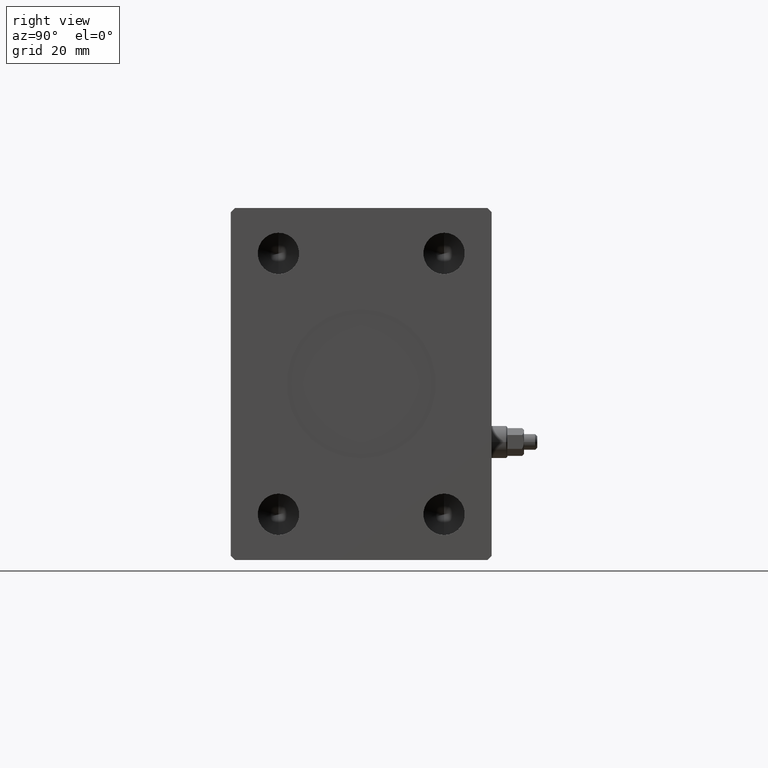
[diagram: clean part render]
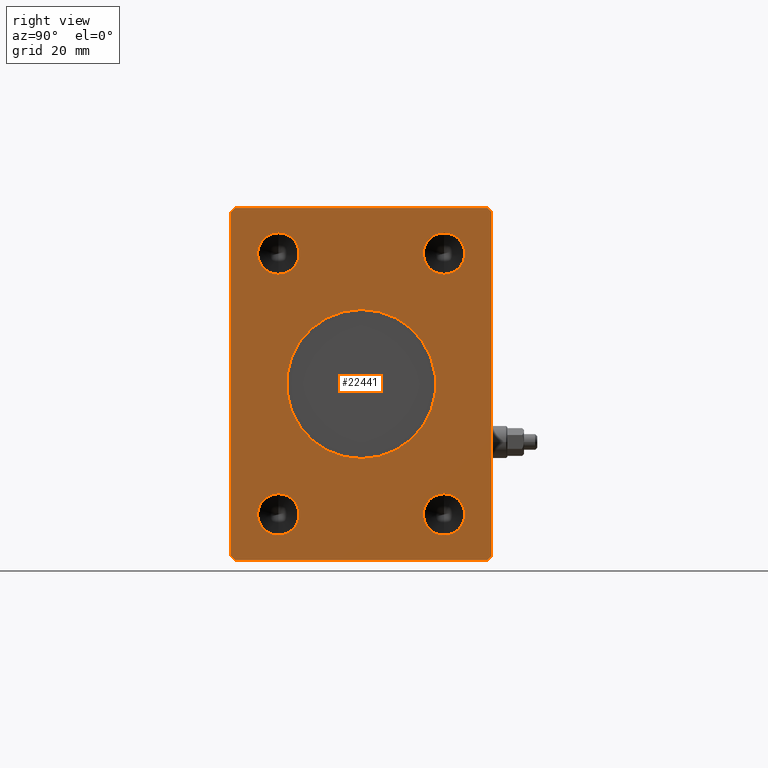
[diagram: same view with one face highlighted and labeled with its STEP entity id]
A machine part, right view. The second image highlights one B-rep face of the part: STEP entity #22441.
In plain terms, the highlighted planar face has unit normal (1, 0, 0).
Its self-contained STEP definition (entity closure, byte-faithful):
#242 = DIRECTION ( 'NONE',  ( 0.000000000000000000, -0.7071067811865462405, -0.7071067811865489050 ) ) ;
#675 = EDGE_CURVE ( 'NONE', #9690, #21901, #19733, .T. ) ;
#768 = VERTEX_POINT ( 'NONE', #7923 ) ;
#861 = CIRCLE ( 'NONE', #14682, 4.999999999999997335 ) ;
#1560 = VECTOR ( 'NONE', #26360, 999.9999999999998863 ) ;
#1970 = AXIS2_PLACEMENT_3D ( 'NONE', #29780, #9288, #36842 ) ;
#1990 = CARTESIAN_POINT ( 'NONE',  ( 126.0000000000000000, -31.50000000000000000, -41.50000000000000711 ) ) ;
#2639 = ORIENTED_EDGE ( 'NONE', *, *, #14465, .F. ) ;
#2842 = ORIENTED_EDGE ( 'NONE', *, *, #14797, .F. ) ;
#2952 = EDGE_CURVE ( 'NONE', #14573, #7235, #31456, .T. ) ;
#3640 = CARTESIAN_POINT ( 'NONE',  ( 126.0000000000000000, 19.99999999999999645, -26.50000000000000355 ) ) ;
#4316 = EDGE_LOOP ( 'NONE', ( #6219, #2842 ) ) ;
#5070 = CIRCLE ( 'NONE', #31995, 4.999999999999997335 ) ;
#5476 = EDGE_CURVE ( 'NONE', #39794, #14114, #9320, .T. ) ;
#6219 = ORIENTED_EDGE ( 'NONE', *, *, #33668, .F. ) ;
#6270 = VERTEX_POINT ( 'NONE', #26092 ) ;
#7199 = VERTEX_POINT ( 'NONE', #19425 ) ;
#7235 = VERTEX_POINT ( 'NONE', #11934 ) ;
#7778 = CIRCLE ( 'NONE', #1970, 4.999999999999997335 ) ;
#7923 = CARTESIAN_POINT ( 'NONE',  ( 126.0000000000000000, 31.50000000000001421, 41.49999999999999289 ) ) ;
#8057 = ORIENTED_EDGE ( 'NONE', *, *, #44827, .F. ) ;
#8146 = CARTESIAN_POINT ( 'NONE',  ( 126.0000000000000000, 30.50000000000001776, -42.50000000000000711 ) ) ;
#8466 = EDGE_CURVE ( 'NONE', #6270, #16624, #11125, .T. ) ;
#8871 = VERTEX_POINT ( 'NONE', #1990 ) ;
#9127 = DIRECTION ( 'NONE',  ( 0.000000000000000000, -0.7071067811865474617, 0.7071067811865474617 ) ) ;
#9140 = FACE_BOUND ( 'NONE', #27356, .T. ) ;
#9288 = DIRECTION ( 'NONE',  ( 1.000000000000000000, -0.000000000000000000, -0.000000000000000000 ) ) ;
#9320 = LINE ( 'NONE', #34125, #19900 ) ;
#9690 = VERTEX_POINT ( 'NONE', #32980 ) ;
#10273 = VECTOR ( 'NONE', #38579, 1000.000000000000114 ) ;
#10610 = EDGE_CURVE ( 'NONE', #768, #43528, #23682, .T. ) ;
#10696 = ORIENTED_EDGE ( 'NONE', *, *, #5476, .T. ) ;
#10732 = CARTESIAN_POINT ( 'NONE',  ( 126.0000000000000000, -30.50000000000000355, 42.49999999999999289 ) ) ;
#11010 = CIRCLE ( 'NONE', #17555, 4.999999999999997335 ) ;
#11125 = CIRCLE ( 'NONE', #44582, 4.999999999999997335 ) ;
#11934 = CARTESIAN_POINT ( 'NONE',  ( 126.0000000000000000, -31.50000000000000000, 41.49999999999999289 ) ) ;
#12527 = DIRECTION ( 'NONE',  ( 1.000000000000000000, -0.000000000000000000, -0.000000000000000000 ) ) ;
#12549 = PLANE ( 'NONE',  #22886 ) ;
#12947 = CARTESIAN_POINT ( 'NONE',  ( 126.0000000000000000, 19.99999999999999645, -31.50000000000000000 ) ) ;
#13185 = CARTESIAN_POINT ( 'NONE',  ( 126.0000000000000000, 30.50000000000001421, 42.49999999999999289 ) ) ;
#13421 = DIRECTION ( 'NONE',  ( 0.000000000000000000, 1.000000000000000000, 0.000000000000000000 ) ) ;
#13896 = CARTESIAN_POINT ( 'NONE',  ( 126.0000000000000000, 30.50000000000001421, 42.49999999999999289 ) ) ;
#14114 = VERTEX_POINT ( 'NONE', #40569 ) ;
#14274 = CARTESIAN_POINT ( 'NONE',  ( 126.0000000000000000, 19.99999999999999645, -36.50000000000000000 ) ) ;
#14465 = EDGE_CURVE ( 'NONE', #7199, #31808, #7778, .T. ) ;
#14500 = ORIENTED_EDGE ( 'NONE', *, *, #675, .F. ) ;
#14573 = VERTEX_POINT ( 'NONE', #31121 ) ;
#14682 = AXIS2_PLACEMENT_3D ( 'NONE', #34252, #37894, #44741 ) ;
#14797 = EDGE_CURVE ( 'NONE', #17376, #32457, #44138, .T. ) ;
#15323 = CARTESIAN_POINT ( 'NONE',  ( 126.0000000000000000, 19.99999999999999645, 31.50000000000000000 ) ) ;
#16624 = VERTEX_POINT ( 'NONE', #34722 ) ;
#16636 = DIRECTION ( 'NONE',  ( 0.000000000000000000, -1.000000000000000000, 0.000000000000000000 ) ) ;
#17029 = DIRECTION ( 'NONE',  ( 1.000000000000000000, -0.000000000000000000, -0.000000000000000000 ) ) ;
#17376 = VERTEX_POINT ( 'NONE', #43919 ) ;
#17449 = CARTESIAN_POINT ( 'NONE',  ( 126.0000000000000000, -20.00000000000000355, 36.50000000000000000 ) ) ;
#17506 = AXIS2_PLACEMENT_3D ( 'NONE', #20522, #30547, #23496 ) ;
#17555 = AXIS2_PLACEMENT_3D ( 'NONE', #29831, #12527, #26424 ) ;
#17782 = ORIENTED_EDGE ( 'NONE', *, *, #24280, .T. ) ;
#17851 = ORIENTED_EDGE ( 'NONE', *, *, #30929, .F. ) ;
#17958 = EDGE_LOOP ( 'NONE', ( #20118, #2639 ) ) ;
#18364 = VERTEX_POINT ( 'NONE', #20060 ) ;
#18434 = CIRCLE ( 'NONE', #35165, 4.999999999999997335 ) ;
#18873 = DIRECTION ( 'NONE',  ( 0.000000000000000000, 0.000000000000000000, -1.000000000000000000 ) ) ;
#19425 = CARTESIAN_POINT ( 'NONE',  ( 126.0000000000000000, -20.00000000000000355, -26.50000000000000355 ) ) ;
#19572 = DIRECTION ( 'NONE',  ( 1.000000000000000000, -0.000000000000000000, -0.000000000000000000 ) ) ;
#19733 = CIRCLE ( 'NONE', #25554, 4.999999999999997335 ) ;
#19805 = DIRECTION ( 'NONE',  ( 0.000000000000000000, 0.000000000000000000, -1.000000000000000000 ) ) ;
#19851 = VECTOR ( 'NONE', #28521, 1000.000000000000000 ) ;
#19900 = VECTOR ( 'NONE', #13421, 1000.000000000000000 ) ;
#19929 = VECTOR ( 'NONE', #9127, 1000.000000000000114 ) ;
#20035 = DIRECTION ( 'NONE',  ( 1.000000000000000000, -0.000000000000000000, -0.000000000000000000 ) ) ;
#20060 = CARTESIAN_POINT ( 'NONE',  ( 126.0000000000000000, 31.50000000000001421, -41.50000000000000711 ) ) ;
#20118 = ORIENTED_EDGE ( 'NONE', *, *, #38167, .F. ) ;
#20122 = ORIENTED_EDGE ( 'NONE', *, *, #8466, .F. ) ;
#20522 = CARTESIAN_POINT ( 'NONE',  ( 126.0000000000000000, 0.000000000000000000, 0.000000000000000000 ) ) ;
#21831 = VERTEX_POINT ( 'NONE', #14274 ) ;
#21901 = VERTEX_POINT ( 'NONE', #17449 ) ;
#22349 = DIRECTION ( 'NONE',  ( 1.000000000000000000, 0.000000000000000000, 0.000000000000000000 ) ) ;
#22441 = ADVANCED_FACE ( 'NONE', ( #32826, #9140, #43749, #29635, #40112, #23019 ), #12549, .T. ) ;
#22587 = ORIENTED_EDGE ( 'NONE', *, *, #24730, .T. ) ;
#22886 = AXIS2_PLACEMENT_3D ( 'NONE', #33057, #22349, #32610 ) ;
#23019 = FACE_OUTER_BOUND ( 'NONE', #33504, .T. ) ;
#23496 = DIRECTION ( 'NONE',  ( 0.000000000000000000, 0.000000000000000000, -1.000000000000000000 ) ) ;
#23607 = CARTESIAN_POINT ( 'NONE',  ( 126.0000000000000000, -30.50000000000000711, -42.50000000000000711 ) ) ;
#23682 = LINE ( 'NONE', #40331, #19929 ) ;
#24106 = CARTESIAN_POINT ( 'NONE',  ( 126.0000000000000000, -20.00000000000000355, 31.50000000000000000 ) ) ;
#24280 = EDGE_CURVE ( 'NONE', #43528, #14573, #33958, .T. ) ;
#24537 = ORIENTED_EDGE ( 'NONE', *, *, #28821, .T. ) ;
#24730 = EDGE_CURVE ( 'NONE', #7235, #8871, #43445, .T. ) ;
#25554 = AXIS2_PLACEMENT_3D ( 'NONE', #24106, #19572, #33463 ) ;
#25687 = LINE ( 'NONE', #8146, #1560 ) ;
#25753 = VECTOR ( 'NONE', #16636, 1000.000000000000000 ) ;
#25808 = EDGE_CURVE ( 'NONE', #21901, #9690, #11010, .T. ) ;
#26092 = CARTESIAN_POINT ( 'NONE',  ( 126.0000000000000000, 19.99999999999999645, 26.50000000000000355 ) ) ;
#26360 = DIRECTION ( 'NONE',  ( 0.000000000000000000, 0.7071067811865462405, 0.7071067811865489050 ) ) ;
#26424 = DIRECTION ( 'NONE',  ( 0.000000000000000000, 0.000000000000000000, -1.000000000000000000 ) ) ;
#26843 = ORIENTED_EDGE ( 'NONE', *, *, #41801, .F. ) ;
#27090 = CIRCLE ( 'NONE', #32159, 4.999999999999997335 ) ;
#27356 = EDGE_LOOP ( 'NONE', ( #20122, #8057 ) ) ;
#27599 = DIRECTION ( 'NONE',  ( 1.000000000000000000, 0.000000000000000000, 0.000000000000000000 ) ) ;
#28521 = DIRECTION ( 'NONE',  ( 0.000000000000000000, 0.000000000000000000, 1.000000000000000000 ) ) ;
#28821 = EDGE_CURVE ( 'NONE', #18364, #768, #44486, .T. ) ;
#29219 = DIRECTION ( 'NONE',  ( 1.000000000000000000, -0.000000000000000000, -0.000000000000000000 ) ) ;
#29551 = CARTESIAN_POINT ( 'NONE',  ( 126.0000000000000000, -31.50000000000000000, 41.49999999999999289 ) ) ;
#29635 = FACE_BOUND ( 'NONE', #43319, .T. ) ;
#29780 = CARTESIAN_POINT ( 'NONE',  ( 126.0000000000000000, -20.00000000000000355, -31.50000000000000000 ) ) ;
#29831 = CARTESIAN_POINT ( 'NONE',  ( 126.0000000000000000, -20.00000000000000355, 31.50000000000000000 ) ) ;
#30197 = VECTOR ( 'NONE', #32520, 1000.000000000000000 ) ;
#30547 = DIRECTION ( 'NONE',  ( 1.000000000000000000, 0.000000000000000000, 0.000000000000000000 ) ) ;
#30557 = DIRECTION ( 'NONE',  ( 0.000000000000000000, 0.000000000000000000, -1.000000000000000000 ) ) ;
#30929 = EDGE_CURVE ( 'NONE', #39285, #21831, #5070, .T. ) ;
#31121 = CARTESIAN_POINT ( 'NONE',  ( 126.0000000000000000, -30.50000000000000355, 42.49999999999999289 ) ) ;
#31330 = CIRCLE ( 'NONE', #17506, 18.00000000000000000 ) ;
#31365 = EDGE_LOOP ( 'NONE', ( #14500, #37478 ) ) ;
#31456 = LINE ( 'NONE', #10732, #31469 ) ;
#31469 = VECTOR ( 'NONE', #242, 999.9999999999998863 ) ;
#31490 = CARTESIAN_POINT ( 'NONE',  ( 126.0000000000000000, 31.50000000000001421, -41.50000000000000711 ) ) ;
#31808 = VERTEX_POINT ( 'NONE', #40027 ) ;
#31995 = AXIS2_PLACEMENT_3D ( 'NONE', #12947, #17029, #34567 ) ;
#32159 = AXIS2_PLACEMENT_3D ( 'NONE', #39839, #36409, #18873 ) ;
#32457 = VERTEX_POINT ( 'NONE', #38342 ) ;
#32520 = DIRECTION ( 'NONE',  ( 0.000000000000000000, 0.000000000000000000, -1.000000000000000000 ) ) ;
#32610 = DIRECTION ( 'NONE',  ( 0.000000000000000000, 0.000000000000000000, -1.000000000000000000 ) ) ;
#32826 = FACE_BOUND ( 'NONE', #4316, .T. ) ;
#32980 = CARTESIAN_POINT ( 'NONE',  ( 126.0000000000000000, -20.00000000000000355, 26.50000000000000355 ) ) ;
#33057 = CARTESIAN_POINT ( 'NONE',  ( 126.0000000000000000, 0.000000000000000000, 0.000000000000000000 ) ) ;
#33463 = DIRECTION ( 'NONE',  ( 0.000000000000000000, 0.000000000000000000, -1.000000000000000000 ) ) ;
#33504 = EDGE_LOOP ( 'NONE', ( #34496, #17782, #41528, #22587, #35051, #10696, #38338, #24537 ) ) ;
#33668 = EDGE_CURVE ( 'NONE', #32457, #17376, #31330, .T. ) ;
#33958 = LINE ( 'NONE', #13896, #25753 ) ;
#33960 = AXIS2_PLACEMENT_3D ( 'NONE', #44909, #27599, #30557 ) ;
#34125 = CARTESIAN_POINT ( 'NONE',  ( 126.0000000000000000, -30.50000000000000711, -42.50000000000000711 ) ) ;
#34252 = CARTESIAN_POINT ( 'NONE',  ( 126.0000000000000000, 19.99999999999999645, -31.50000000000000000 ) ) ;
#34496 = ORIENTED_EDGE ( 'NONE', *, *, #10610, .T. ) ;
#34567 = DIRECTION ( 'NONE',  ( 0.000000000000000000, 0.000000000000000000, -1.000000000000000000 ) ) ;
#34712 = CARTESIAN_POINT ( 'NONE',  ( 126.0000000000000000, -31.50000000000000000, -41.50000000000000711 ) ) ;
#34722 = CARTESIAN_POINT ( 'NONE',  ( 126.0000000000000000, 19.99999999999999645, 36.50000000000000000 ) ) ;
#35051 = ORIENTED_EDGE ( 'NONE', *, *, #38631, .T. ) ;
#35165 = AXIS2_PLACEMENT_3D ( 'NONE', #15323, #29219, #43124 ) ;
#36409 = DIRECTION ( 'NONE',  ( 1.000000000000000000, -0.000000000000000000, -0.000000000000000000 ) ) ;
#36842 = DIRECTION ( 'NONE',  ( 0.000000000000000000, 0.000000000000000000, -1.000000000000000000 ) ) ;
#37478 = ORIENTED_EDGE ( 'NONE', *, *, #25808, .F. ) ;
#37894 = DIRECTION ( 'NONE',  ( 1.000000000000000000, -0.000000000000000000, -0.000000000000000000 ) ) ;
#37914 = LINE ( 'NONE', #34712, #10273 ) ;
#38167 = EDGE_CURVE ( 'NONE', #31808, #7199, #27090, .T. ) ;
#38338 = ORIENTED_EDGE ( 'NONE', *, *, #40376, .T. ) ;
#38342 = CARTESIAN_POINT ( 'NONE',  ( 126.0000000000000000, 0.000000000000000000, -18.00000000000000000 ) ) ;
#38579 = DIRECTION ( 'NONE',  ( 0.000000000000000000, 0.7071067811865451302, -0.7071067811865500152 ) ) ;
#38631 = EDGE_CURVE ( 'NONE', #8871, #39794, #37914, .T. ) ;
#39285 = VERTEX_POINT ( 'NONE', #3640 ) ;
#39794 = VERTEX_POINT ( 'NONE', #23607 ) ;
#39839 = CARTESIAN_POINT ( 'NONE',  ( 126.0000000000000000, -20.00000000000000355, -31.50000000000000000 ) ) ;
#40027 = CARTESIAN_POINT ( 'NONE',  ( 126.0000000000000000, -20.00000000000000355, -36.50000000000000000 ) ) ;
#40112 = FACE_BOUND ( 'NONE', #31365, .T. ) ;
#40331 = CARTESIAN_POINT ( 'NONE',  ( 126.0000000000000000, 31.50000000000001421, 41.49999999999999289 ) ) ;
#40376 = EDGE_CURVE ( 'NONE', #14114, #18364, #25687, .T. ) ;
#40569 = CARTESIAN_POINT ( 'NONE',  ( 126.0000000000000000, 30.50000000000001776, -42.50000000000000711 ) ) ;
#41441 = CARTESIAN_POINT ( 'NONE',  ( 126.0000000000000000, 19.99999999999999645, 31.50000000000000000 ) ) ;
#41528 = ORIENTED_EDGE ( 'NONE', *, *, #2952, .T. ) ;
#41801 = EDGE_CURVE ( 'NONE', #21831, #39285, #861, .T. ) ;
#43124 = DIRECTION ( 'NONE',  ( 0.000000000000000000, 0.000000000000000000, -1.000000000000000000 ) ) ;
#43319 = EDGE_LOOP ( 'NONE', ( #26843, #17851 ) ) ;
#43445 = LINE ( 'NONE', #29551, #30197 ) ;
#43528 = VERTEX_POINT ( 'NONE', #13185 ) ;
#43749 = FACE_BOUND ( 'NONE', #17958, .T. ) ;
#43919 = CARTESIAN_POINT ( 'NONE',  ( 126.0000000000000000, 2.204364238465235428E-15, 18.00000000000000000 ) ) ;
#44138 = CIRCLE ( 'NONE', #33960, 18.00000000000000000 ) ;
#44486 = LINE ( 'NONE', #31490, #19851 ) ;
#44582 = AXIS2_PLACEMENT_3D ( 'NONE', #41441, #20035, #19805 ) ;
#44741 = DIRECTION ( 'NONE',  ( 0.000000000000000000, 0.000000000000000000, -1.000000000000000000 ) ) ;
#44827 = EDGE_CURVE ( 'NONE', #16624, #6270, #18434, .T. ) ;
#44909 = CARTESIAN_POINT ( 'NONE',  ( 126.0000000000000000, 0.000000000000000000, 0.000000000000000000 ) ) ;